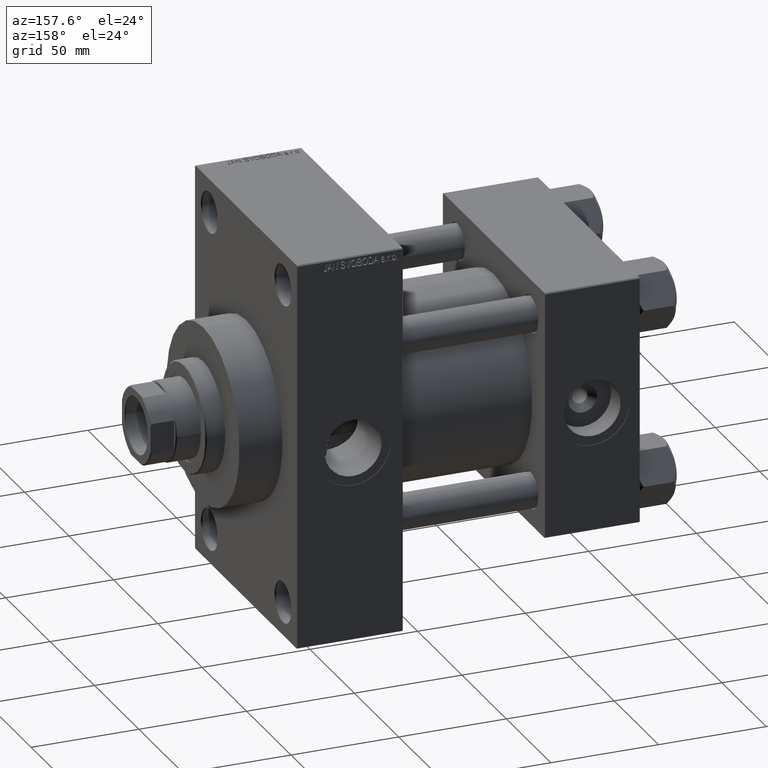
[diagram: clean part render]
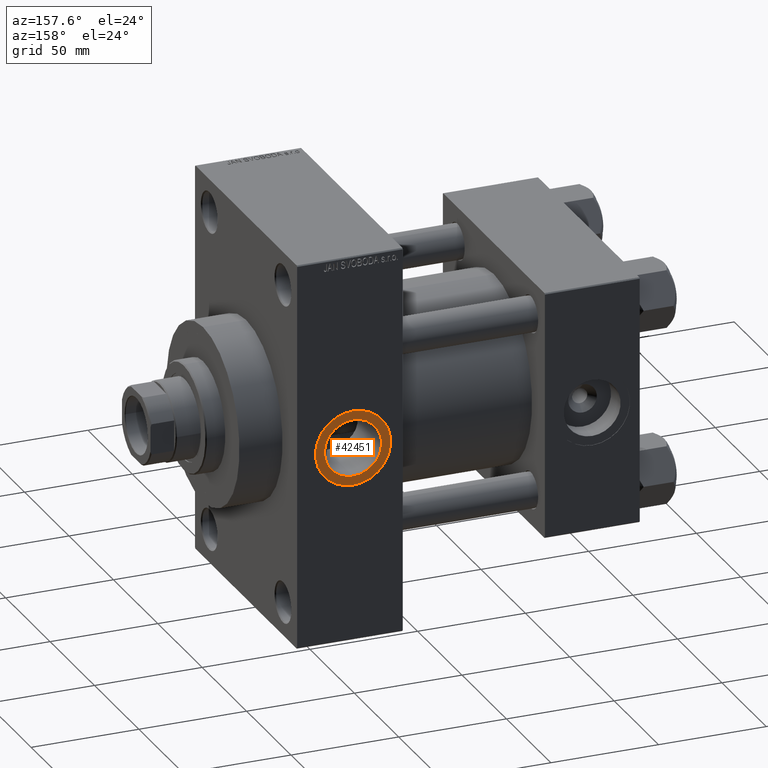
[diagram: same view with one face highlighted and labeled with its STEP entity id]
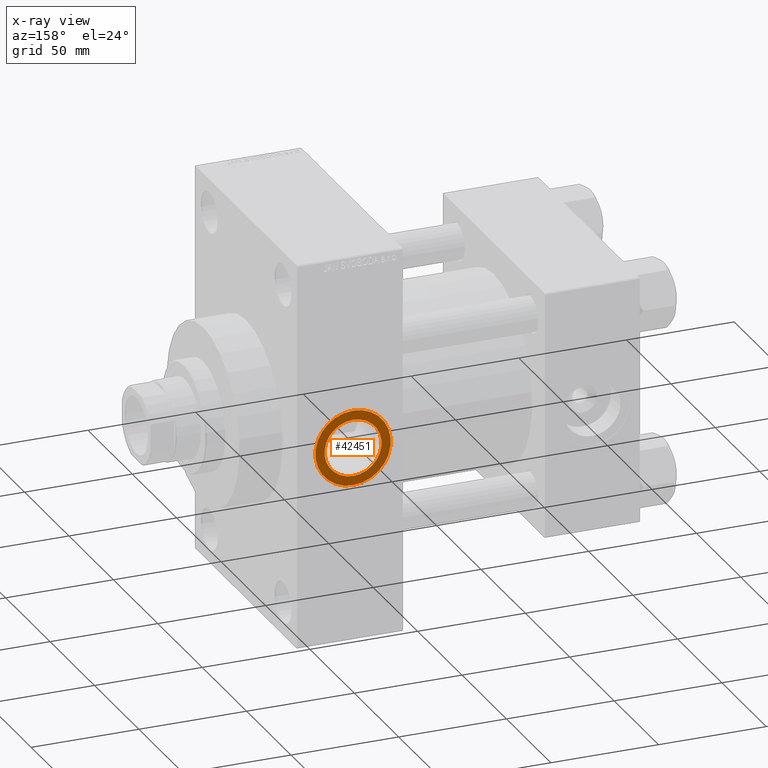
[diagram: x-ray of the same camera — body ghosted, the highlighted face saturated]
A machine part, auxiliary view. The second image highlights one B-rep face of the part: STEP entity #42451.
The next image is the same camera in x-ray: the body ghosted, the highlighted face saturated — about 0% of this face is hidden behind the body in this view.
In plain terms, the highlighted planar face has unit normal (0, 1, 0).
Its self-contained STEP definition (entity closure, byte-faithful):
#357 = DIRECTION ( 'NONE',  ( 0.000000000000000000, 0.000000000000000000, 1.000000000000000000 ) ) ;
#1028 = VERTEX_POINT ( 'NONE', #28495 ) ;
#1953 = CIRCLE ( 'NONE', #31963, 13.22000000000001307 ) ;
#2307 = CARTESIAN_POINT ( 'NONE',  ( 133.0000000000000000, 57.29999999999996874, 13.22000000000001485 ) ) ;
#3151 = PLANE ( 'NONE',  #46688 ) ;
#6255 = CIRCLE ( 'NONE', #13948, 17.50000000000002132 ) ;
#6768 = CARTESIAN_POINT ( 'NONE',  ( 133.0000000000000000, 57.29999999999997584, 2.216591108192586142E-15 ) ) ;
#7067 = CARTESIAN_POINT ( 'NONE',  ( 133.0000000000000000, 57.29999999999996874, 2.216591108192586142E-15 ) ) ;
#7806 = CARTESIAN_POINT ( 'NONE',  ( 133.0000000000000000, 57.29999999999996874, -13.22000000000001130 ) ) ;
#11575 = DIRECTION ( 'NONE',  ( 0.000000000000000000, 0.000000000000000000, 1.000000000000000000 ) ) ;
#11732 = ORIENTED_EDGE ( 'NONE', *, *, #43296, .T. ) ;
#13823 = DIRECTION ( 'NONE',  ( 0.000000000000000000, 0.000000000000000000, 1.000000000000000000 ) ) ;
#13948 = AXIS2_PLACEMENT_3D ( 'NONE', #19140, #26853, #357 ) ;
#14533 = DIRECTION ( 'NONE',  ( 0.000000000000000000, 0.000000000000000000, 1.000000000000000000 ) ) ;
#15120 = EDGE_CURVE ( 'NONE', #33489, #20592, #29857, .T. ) ;
#15657 = CARTESIAN_POINT ( 'NONE',  ( 133.0000000000000000, 57.29999999999997584, 2.216591108192586142E-15 ) ) ;
#16964 = EDGE_LOOP ( 'NONE', ( #43230, #31917 ) ) ;
#17681 = CARTESIAN_POINT ( 'NONE',  ( 133.0000000000000000, 57.29999999999996874, 2.216591108192586142E-15 ) ) ;
#17843 = FACE_OUTER_BOUND ( 'NONE', #27635, .T. ) ;
#19140 = CARTESIAN_POINT ( 'NONE',  ( 133.0000000000000000, 57.29999999999997584, 2.216591108192586142E-15 ) ) ;
#20592 = VERTEX_POINT ( 'NONE', #2307 ) ;
#23898 = CARTESIAN_POINT ( 'NONE',  ( 133.0000000000000000, 57.29999999999997584, -17.50000000000001776 ) ) ;
#24412 = CIRCLE ( 'NONE', #28264, 17.50000000000002132 ) ;
#25799 = DIRECTION ( 'NONE',  ( 0.000000000000000000, 1.000000000000000000, 0.000000000000000000 ) ) ;
#26105 = EDGE_CURVE ( 'NONE', #1028, #42340, #6255, .T. ) ;
#26853 = DIRECTION ( 'NONE',  ( 0.000000000000000000, 1.000000000000000000, 0.000000000000000000 ) ) ;
#27635 = EDGE_LOOP ( 'NONE', ( #47160, #11732 ) ) ;
#28264 = AXIS2_PLACEMENT_3D ( 'NONE', #15657, #29912, #11575 ) ;
#28495 = CARTESIAN_POINT ( 'NONE',  ( 133.0000000000000000, 57.29999999999997584, 17.50000000000002487 ) ) ;
#29857 = CIRCLE ( 'NONE', #38330, 13.22000000000001307 ) ;
#29912 = DIRECTION ( 'NONE',  ( 0.000000000000000000, 1.000000000000000000, 0.000000000000000000 ) ) ;
#31917 = ORIENTED_EDGE ( 'NONE', *, *, #15120, .F. ) ;
#31963 = AXIS2_PLACEMENT_3D ( 'NONE', #17681, #32635, #13823 ) ;
#32635 = DIRECTION ( 'NONE',  ( 0.000000000000000000, 1.000000000000000000, 0.000000000000000000 ) ) ;
#33489 = VERTEX_POINT ( 'NONE', #7806 ) ;
#36469 = DIRECTION ( 'NONE',  ( 0.000000000000000000, 1.000000000000000000, 0.000000000000000000 ) ) ;
#38330 = AXIS2_PLACEMENT_3D ( 'NONE', #7067, #36469, #14533 ) ;
#38482 = EDGE_CURVE ( 'NONE', #20592, #33489, #1953, .T. ) ;
#40504 = DIRECTION ( 'NONE',  ( 0.000000000000000000, -0.000000000000000000, 1.000000000000000000 ) ) ;
#42340 = VERTEX_POINT ( 'NONE', #23898 ) ;
#42451 = ADVANCED_FACE ( 'NONE', ( #43169, #17843 ), #3151, .T. ) ;
#43169 = FACE_BOUND ( 'NONE', #16964, .T. ) ;
#43230 = ORIENTED_EDGE ( 'NONE', *, *, #38482, .F. ) ;
#43296 = EDGE_CURVE ( 'NONE', #42340, #1028, #24412, .T. ) ;
#46688 = AXIS2_PLACEMENT_3D ( 'NONE', #6768, #25799, #40504 ) ;
#47160 = ORIENTED_EDGE ( 'NONE', *, *, #26105, .T. ) ;